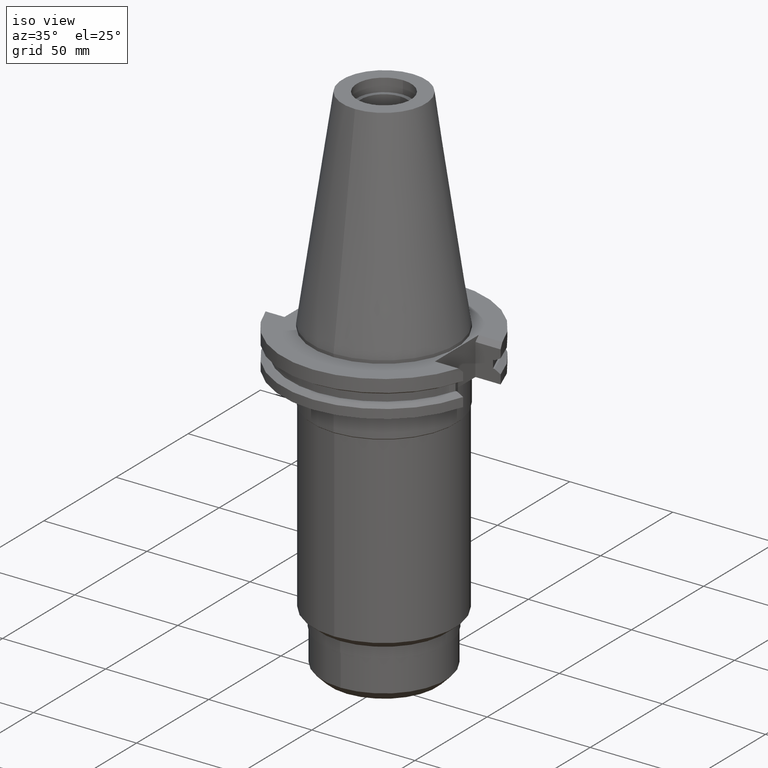
[diagram: clean part render]
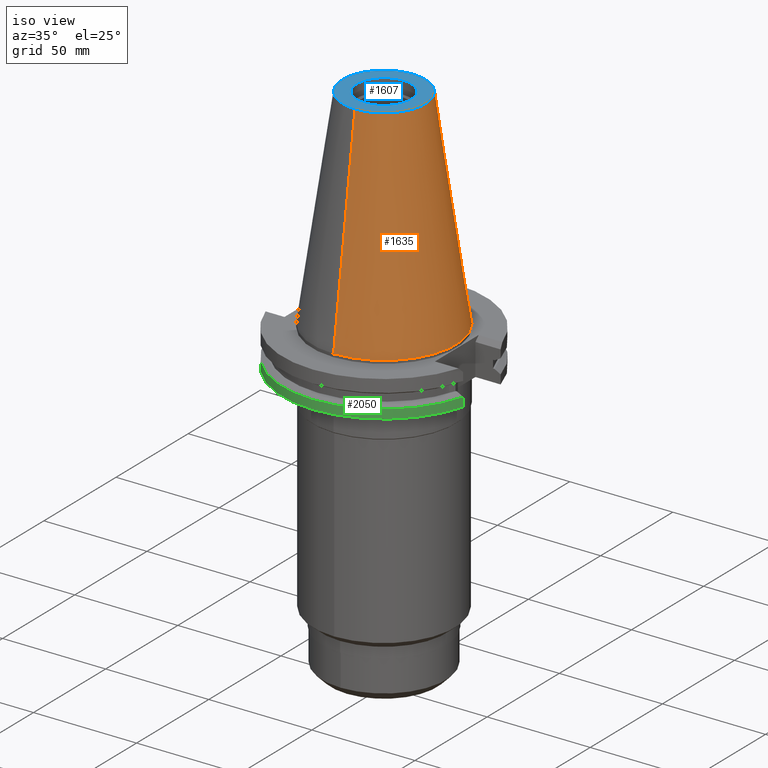
[diagram: same view with three faces highlighted in distinct colors, each labeled with its STEP entity id]
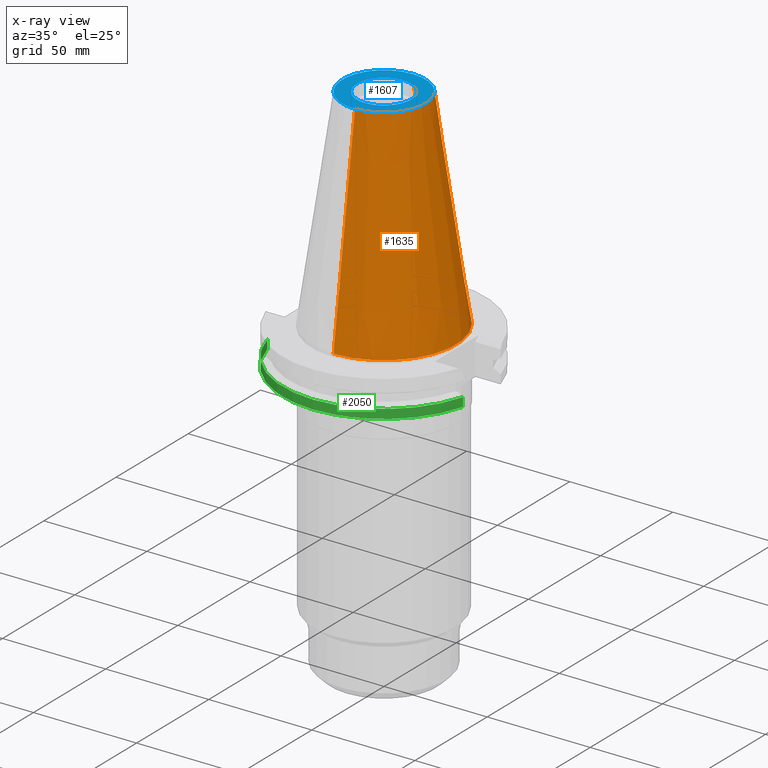
[diagram: x-ray of the same camera — body ghosted, the three highlighted faces saturated]
A machine part, iso view with three faces highlighted in distinct colors.
The next image is the same camera in x-ray (body ghosted, the three faces saturated) — at least one of them is partly hidden behind the body in this view.
Their STEP definitions:

[orange] entity #1635 — the highlighted conical surface has half-angle 8.297 deg.
#26=CARTESIAN_POINT('',(0.E0,1.846767373114E-14,1.016E2));
#27=DIRECTION('',(0.E0,0.E0,-1.E0));
#28=DIRECTION('',(0.E0,1.E0,0.E0));
#29=AXIS2_PLACEMENT_3D('',#26,#27,#28);
#50=DIRECTION('',(0.E0,-1.443069799457E-1,-9.895329683942E-1));
#51=VECTOR('',#50,1.026746993229E2);
#52=CARTESIAN_POINT('',(0.E0,-2.010832422387E1,1.016E2));
#53=LINE('',#52,#51);
#65=DIRECTION('',(0.E0,1.443069799457E-1,-9.895329683942E-1));
#66=VECTOR('',#65,1.026746993229E2);
#67=CARTESIAN_POINT('',(0.E0,2.010832422387E1,1.016E2));
#68=LINE('',#67,#66);
#72=CARTESIAN_POINT('',(0.E0,1.846767373114E-14,8.242295734817E-13));
#73=DIRECTION('',(0.E0,0.E0,-1.E0));
#74=DIRECTION('',(0.E0,1.E0,0.E0));
#75=AXIS2_PLACEMENT_3D('',#72,#73,#74);
#1364=CARTESIAN_POINT('',(0.E0,-2.010832422388E1,1.016E2));
#1365=CARTESIAN_POINT('',(0.E0,2.010832422388E1,1.016E2));
#1366=VERTEX_POINT('',#1364);
#1367=VERTEX_POINT('',#1365);
#1582=CARTESIAN_POINT('',(0.E0,3.4925E1,5.115907697473E-13));
#1583=VERTEX_POINT('',#1582);
#1584=CARTESIAN_POINT('',(0.E0,-3.4925E1,5.115907697473E-13));
#1585=VERTEX_POINT('',#1584);
#1623=CARTESIAN_POINT('',(0.E0,1.846767373114E-14,5.08E1));
#1624=DIRECTION('',(0.E0,0.E0,-1.E0));
#1625=DIRECTION('',(0.E0,-1.E0,0.E0));
#1626=AXIS2_PLACEMENT_3D('',#1623,#1624,#1625);
#1627=CONICAL_SURFACE('',#1626,2.751666211194E1,8.29715E0);
#1628=ORIENTED_EDGE('',*,*,#1613,.T.);
#1630=ORIENTED_EDGE('',*,*,#1629,.T.);
#1631=ORIENTED_EDGE('',*,*,#1616,.F.);
#1632=ORIENTED_EDGE('',*,*,#1597,.F.);
#1633=EDGE_LOOP('',(#1628,#1630,#1631,#1632));
#1634=FACE_OUTER_BOUND('',#1633,.F.);
#30=CIRCLE('',#29,2.010832422388E1);
#76=CIRCLE('',#75,3.4925E1);
#1597=EDGE_CURVE('',#1367,#1366,#30,.T.);
#1613=EDGE_CURVE('',#1367,#1583,#68,.T.);
#1616=EDGE_CURVE('',#1366,#1585,#53,.T.);
#1629=EDGE_CURVE('',#1583,#1585,#76,.T.);
#1635=ADVANCED_FACE('',(#1634),#1627,.T.);

[blue] entity #1607 — the highlighted planar face has unit normal (0, 0, -1).
#17=CARTESIAN_POINT('',(0.E0,1.846767373114E-14,1.016E2));
#18=DIRECTION('',(0.E0,0.E0,-1.E0));
#19=DIRECTION('',(0.E0,-1.E0,0.E0));
#20=AXIS2_PLACEMENT_3D('',#17,#18,#19);
#26=CARTESIAN_POINT('',(0.E0,1.846767373114E-14,1.016E2));
#27=DIRECTION('',(0.E0,0.E0,-1.E0));
#28=DIRECTION('',(0.E0,1.E0,0.E0));
#29=AXIS2_PLACEMENT_3D('',#26,#27,#28);
#34=CARTESIAN_POINT('',(0.E0,2.625887666732E-14,1.016E2));
#35=DIRECTION('',(0.E0,0.E0,1.E0));
#36=DIRECTION('',(0.E0,-1.E0,0.E0));
#37=AXIS2_PLACEMENT_3D('',#34,#35,#36);
#42=CARTESIAN_POINT('',(0.E0,2.625887666732E-14,1.016E2));
#43=DIRECTION('',(0.E0,0.E0,1.E0));
#44=DIRECTION('',(0.E0,1.E0,0.E0));
#45=AXIS2_PLACEMENT_3D('',#42,#43,#44);
#1364=CARTESIAN_POINT('',(0.E0,-2.010832422388E1,1.016E2));
#1365=CARTESIAN_POINT('',(0.E0,2.010832422388E1,1.016E2));
#1366=VERTEX_POINT('',#1364);
#1367=VERTEX_POINT('',#1365);
#1368=CARTESIAN_POINT('',(0.E0,-1.3115E1,1.016E2));
#1369=CARTESIAN_POINT('',(0.E0,1.3115E1,1.016E2));
#1370=VERTEX_POINT('',#1368);
#1371=VERTEX_POINT('',#1369);
#1590=CARTESIAN_POINT('',(0.E0,2.468887947081E-14,1.016E2));
#1591=DIRECTION('',(0.E0,0.E0,-1.E0));
#1592=DIRECTION('',(0.E0,-1.E0,0.E0));
#1593=AXIS2_PLACEMENT_3D('',#1590,#1591,#1592);
#1594=PLANE('',#1593);
#1596=ORIENTED_EDGE('',*,*,#1595,.T.);
#1598=ORIENTED_EDGE('',*,*,#1597,.T.);
#1599=EDGE_LOOP('',(#1596,#1598));
#1600=FACE_OUTER_BOUND('',#1599,.F.);
#1602=ORIENTED_EDGE('',*,*,#1601,.T.);
#1604=ORIENTED_EDGE('',*,*,#1603,.T.);
#1605=EDGE_LOOP('',(#1602,#1604));
#1606=FACE_BOUND('',#1605,.F.);
#21=CIRCLE('',#20,2.010832422388E1);
#30=CIRCLE('',#29,2.010832422388E1);
#38=CIRCLE('',#37,1.3115E1);
#46=CIRCLE('',#45,1.3115E1);
#1595=EDGE_CURVE('',#1366,#1367,#21,.T.);
#1597=EDGE_CURVE('',#1367,#1366,#30,.T.);
#1601=EDGE_CURVE('',#1370,#1371,#38,.T.);
#1603=EDGE_CURVE('',#1371,#1370,#46,.T.);
#1607=ADVANCED_FACE('',(#1600,#1606),#1594,.F.);

[green] entity #2050 — the highlighted cylindrical surface (partial cylindrical patch) has radius 49.2125 mm, axis along (0, 0, -1).
#235=CARTESIAN_POINT('',(0.E0,2.625887666732E-14,-1.905E1));
#236=DIRECTION('',(0.E0,0.E0,1.E0));
#237=DIRECTION('',(-9.647287063661E-1,-2.632461264923E-1,0.E0));
#238=AXIS2_PLACEMENT_3D('',#235,#236,#237);
#243=CARTESIAN_POINT('',(0.E0,2.625887666732E-14,-1.905E1));
#244=DIRECTION('',(0.E0,0.E0,1.E0));
#245=DIRECTION('',(0.E0,-1.E0,0.E0));
#246=AXIS2_PLACEMENT_3D('',#243,#244,#245);
#626=DIRECTION('',(-1.228324721565E-13,4.808244798230E-14,-1.E0));
#627=VECTOR('',#626,4.396333230921E0);
#628=CARTESIAN_POINT('',(4.747671146204E1,-1.2955E1,-1.465366676908E1));
#629=LINE('',#628,#627);
#633=DIRECTION('',(-1.341459893288E-13,-4.727433961285E-14,1.E0));
#634=VECTOR('',#633,4.396333230921E0);
#635=CARTESIAN_POINT('',(-4.747671146204E1,-1.2955E1,-1.905E1));
#636=LINE('',#635,#634);
#792=CARTESIAN_POINT('',(0.E0,1.055026073065E-14,-1.465366676908E1));
#793=DIRECTION('',(0.E0,0.E0,-1.E0));
#794=DIRECTION('',(9.647287063661E-1,-2.632461264923E-1,0.E0));
#795=AXIS2_PLACEMENT_3D('',#792,#793,#794);
#800=CARTESIAN_POINT('',(0.E0,1.055026073065E-14,-1.465366676908E1));
#801=DIRECTION('',(0.E0,0.E0,-1.E0));
#802=DIRECTION('',(0.E0,-1.E0,0.E0));
#803=AXIS2_PLACEMENT_3D('',#800,#801,#802);
#1470=CARTESIAN_POINT('',(-4.747671146204E1,-1.2955E1,-1.905E1));
#1471=VERTEX_POINT('',#1470);
#1472=CARTESIAN_POINT('',(0.E0,-4.92125E1,-1.905E1));
#1473=CARTESIAN_POINT('',(4.747671146204E1,-1.2955E1,-1.905E1));
#1474=VERTEX_POINT('',#1472);
#1475=VERTEX_POINT('',#1473);
#1484=CARTESIAN_POINT('',(4.747671146204E1,-1.2955E1,-1.465366676908E1));
#1485=VERTEX_POINT('',#1484);
#1496=CARTESIAN_POINT('',(-4.747671146204E1,-1.2955E1,-1.465366676908E1));
#1497=VERTEX_POINT('',#1496);
#1498=CARTESIAN_POINT('',(0.E0,-4.92125E1,-1.465366676908E1));
#1499=VERTEX_POINT('',#1498);
#2034=CARTESIAN_POINT('',(0.E0,2.625887666732E-14,1.1442E2));
#2035=DIRECTION('',(0.E0,0.E0,-1.E0));
#2036=DIRECTION('',(0.E0,-1.E0,0.E0));
#2037=AXIS2_PLACEMENT_3D('',#2034,#2035,#2036);
#2038=CYLINDRICAL_SURFACE('',#2037,4.92125E1);
#2039=ORIENTED_EDGE('',*,*,#2016,.T.);
#2040=ORIENTED_EDGE('',*,*,#1735,.F.);
#2041=ORIENTED_EDGE('',*,*,#1733,.F.);
#2043=ORIENTED_EDGE('',*,*,#2042,.T.);
#2045=ORIENTED_EDGE('',*,*,#2044,.F.);
#2047=ORIENTED_EDGE('',*,*,#2046,.F.);
#2048=EDGE_LOOP('',(#2039,#2040,#2041,#2043,#2045,#2047));
#2049=FACE_OUTER_BOUND('',#2048,.F.);
#239=CIRCLE('',#238,4.92125E1);
#247=CIRCLE('',#246,4.92125E1);
#796=CIRCLE('',#795,4.92125E1);
#804=CIRCLE('',#803,4.92125E1);
#1733=EDGE_CURVE('',#1471,#1474,#239,.T.);
#1735=EDGE_CURVE('',#1474,#1475,#247,.T.);
#2016=EDGE_CURVE('',#1485,#1475,#629,.T.);
#2042=EDGE_CURVE('',#1471,#1497,#636,.T.);
#2044=EDGE_CURVE('',#1499,#1497,#804,.T.);
#2046=EDGE_CURVE('',#1485,#1499,#796,.T.);
#2050=ADVANCED_FACE('',(#2049),#2038,.T.);